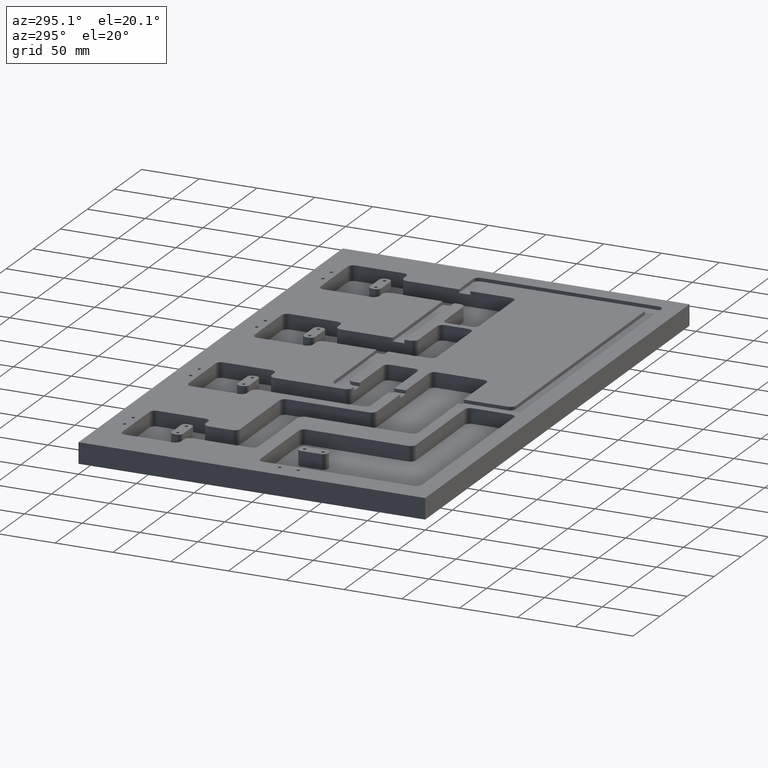
[diagram: clean part render]
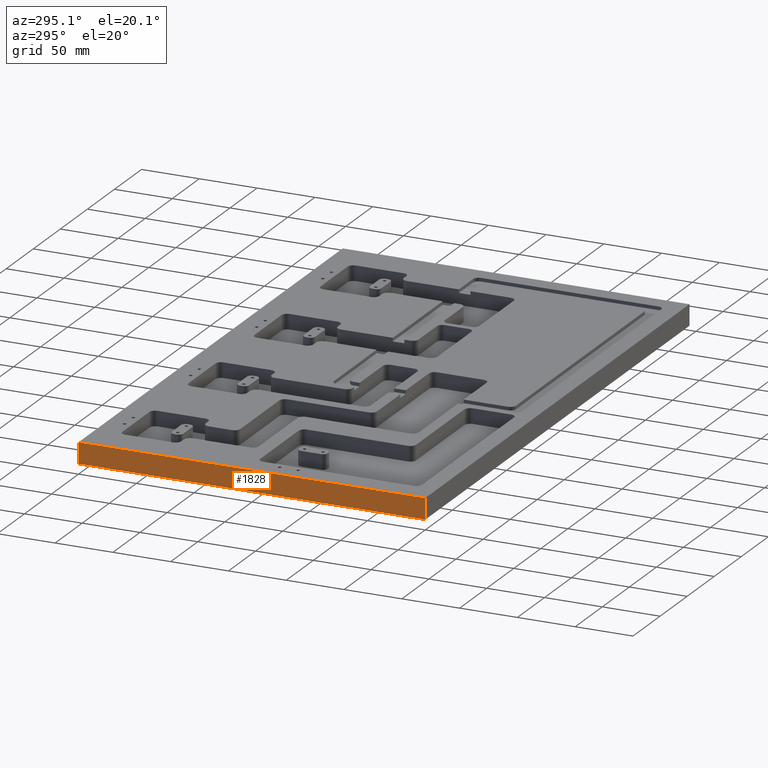
[diagram: same view with one face highlighted and labeled with its STEP entity id]
A machine part, auxiliary view. The second image highlights one B-rep face of the part: STEP entity #1828.
In plain terms, the highlighted planar face has unit normal (1, 0, 0).
Its self-contained STEP definition (entity closure, byte-faithful):
#66 = VECTOR ( 'NONE', #5672, 1000.000000000000000 ) ;
#227 = LINE ( 'NONE', #5215, #2147 ) ;
#240 = LINE ( 'NONE', #5786, #593 ) ;
#291 = PLANE ( 'NONE',  #5338 ) ;
#364 = CARTESIAN_POINT ( 'NONE',  ( 0.0000000000000000000, 0.0000000000000000000, 18.00000000000000000 ) ) ;
#593 = VECTOR ( 'NONE', #3923, 1000.000000000000000 ) ;
#704 = VERTEX_POINT ( 'NONE', #5977 ) ;
#1040 = EDGE_LOOP ( 'NONE', ( #3487, #4174, #4974, #2221 ) ) ;
#1140 = CARTESIAN_POINT ( 'NONE',  ( 0.0000000000000000000, 0.0000000000000000000, 0.0000000000000000000 ) ) ;
#1527 = FACE_OUTER_BOUND ( 'NONE', #1040, .T. ) ;
#1549 = DIRECTION ( 'NONE',  ( 0.0000000000000000000, 0.0000000000000000000, -1.000000000000000000 ) ) ;
#1828 = ADVANCED_FACE ( 'NONE', ( #1527 ), #291, .F. ) ;
#1830 = EDGE_CURVE ( 'NONE', #704, #4504, #240, .T. ) ;
#2147 = VECTOR ( 'NONE', #5184, 1000.000000000000000 ) ;
#2221 = ORIENTED_EDGE ( 'NONE', *, *, #3316, .T. ) ;
#2445 = EDGE_CURVE ( 'NONE', #4955, #4728, #3967, .T. ) ;
#3316 = EDGE_CURVE ( 'NONE', #4955, #704, #227, .T. ) ;
#3365 = DIRECTION ( 'NONE',  ( -0.0000000000000000000, -1.000000000000000000, -0.0000000000000000000 ) ) ;
#3487 = ORIENTED_EDGE ( 'NONE', *, *, #1830, .T. ) ;
#3673 = CARTESIAN_POINT ( 'NONE',  ( 0.0000000000000000000, 0.0000000000000000000, 18.00000000000000000 ) ) ;
#3923 = DIRECTION ( 'NONE',  ( -0.0000000000000000000, -1.000000000000000000, -0.0000000000000000000 ) ) ;
#3967 = LINE ( 'NONE', #4581, #6309 ) ;
#4174 = ORIENTED_EDGE ( 'NONE', *, *, #4853, .F. ) ;
#4467 = DIRECTION ( 'NONE',  ( 1.000000000000000000, 0.0000000000000000000, 0.0000000000000000000 ) ) ;
#4504 = VERTEX_POINT ( 'NONE', #1140 ) ;
#4581 = CARTESIAN_POINT ( 'NONE',  ( 0.0000000000000000000, 0.0000000000000000000, 18.00000000000000000 ) ) ;
#4728 = VERTEX_POINT ( 'NONE', #3673 ) ;
#4736 = LINE ( 'NONE', #5954, #66 ) ;
#4853 = EDGE_CURVE ( 'NONE', #4728, #4504, #4736, .T. ) ;
#4955 = VERTEX_POINT ( 'NONE', #6158 ) ;
#4974 = ORIENTED_EDGE ( 'NONE', *, *, #2445, .F. ) ;
#5184 = DIRECTION ( 'NONE',  ( -0.0000000000000000000, -0.0000000000000000000, -1.000000000000000000 ) ) ;
#5215 = CARTESIAN_POINT ( 'NONE',  ( 0.0000000000000000000, 300.0000000000000000, 18.00000000000000000 ) ) ;
#5338 = AXIS2_PLACEMENT_3D ( 'NONE', #364, #4467, #1549 ) ;
#5672 = DIRECTION ( 'NONE',  ( -0.0000000000000000000, -0.0000000000000000000, -1.000000000000000000 ) ) ;
#5786 = CARTESIAN_POINT ( 'NONE',  ( 0.0000000000000000000, 0.0000000000000000000, 0.0000000000000000000 ) ) ;
#5954 = CARTESIAN_POINT ( 'NONE',  ( 0.0000000000000000000, 0.0000000000000000000, 18.00000000000000000 ) ) ;
#5977 = CARTESIAN_POINT ( 'NONE',  ( 0.0000000000000000000, 300.0000000000000000, 0.0000000000000000000 ) ) ;
#6158 = CARTESIAN_POINT ( 'NONE',  ( 0.0000000000000000000, 300.0000000000000000, 18.00000000000000000 ) ) ;
#6309 = VECTOR ( 'NONE', #3365, 1000.000000000000000 ) ;